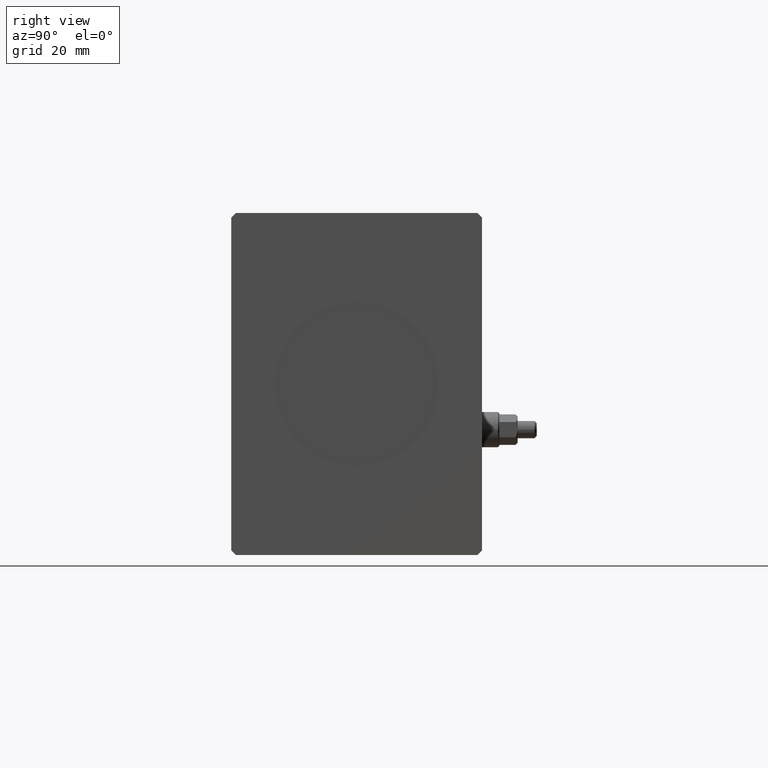
[diagram: clean part render]
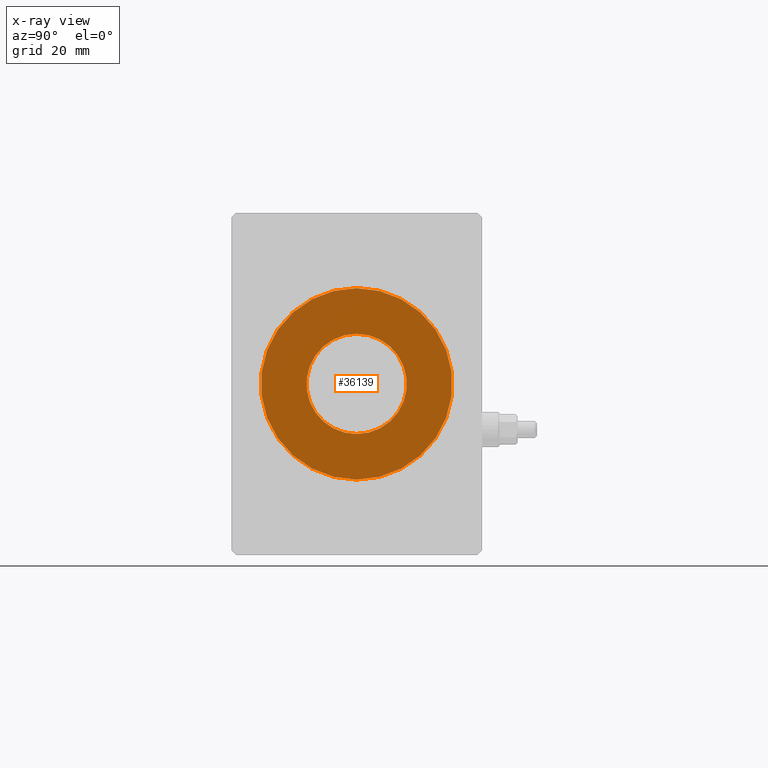
[diagram: x-ray — body ghosted, one internal face saturated and labeled with its STEP entity id]
A machine part, right view, then the same camera in x-ray: the body is ghosted and one INTERNAL B-rep face — a face not visible from any outside direction — is saturated and labeled: STEP entity #36139.
In plain terms, the highlighted planar face has unit normal (-1, 0, 0).
Its self-contained STEP definition (entity closure, byte-faithful):
#933 = FACE_OUTER_BOUND ( 'NONE', #25514, .T. ) ;
#1570 = FACE_BOUND ( 'NONE', #37253, .T. ) ;
#3155 = EDGE_CURVE ( 'NONE', #36074, #39779, #10089, .T. ) ;
#3495 = DIRECTION ( 'NONE',  ( 1.000000000000000000, 0.000000000000000000, 0.000000000000000000 ) ) ;
#3675 = ORIENTED_EDGE ( 'NONE', *, *, #29063, .T. ) ;
#5773 = EDGE_CURVE ( 'NONE', #39779, #36074, #26318, .T. ) ;
#6174 = AXIS2_PLACEMENT_3D ( 'NONE', #27103, #30035, #17598 ) ;
#6442 = CARTESIAN_POINT ( 'NONE',  ( 21.00000000000000000, 2.571758278209441661E-15, 0.000000000000000000 ) ) ;
#7293 = CARTESIAN_POINT ( 'NONE',  ( 0.000000000000000000, 0.000000000000000000, 0.000000000000000000 ) ) ;
#10089 = CIRCLE ( 'NONE', #24248, 21.00000000000000000 ) ;
#11078 = CARTESIAN_POINT ( 'NONE',  ( 0.000000000000000000, 0.000000000000000000, 0.000000000000000000 ) ) ;
#11467 = DIRECTION ( 'NONE',  ( -0.000000000000000000, 0.000000000000000000, 1.000000000000000000 ) ) ;
#13990 = CARTESIAN_POINT ( 'NONE',  ( 0.000000000000000000, 0.000000000000000000, 0.000000000000000000 ) ) ;
#14013 = PLANE ( 'NONE',  #6174 ) ;
#14241 = DIRECTION ( 'NONE',  ( 1.000000000000000000, 0.000000000000000000, 0.000000000000000000 ) ) ;
#15688 = CARTESIAN_POINT ( 'NONE',  ( 0.000000000000000000, 0.000000000000000000, 0.000000000000000000 ) ) ;
#16957 = CIRCLE ( 'NONE', #29093, 11.00000000000000000 ) ;
#17557 = AXIS2_PLACEMENT_3D ( 'NONE', #11078, #34046, #14241 ) ;
#17598 = DIRECTION ( 'NONE',  ( 1.000000000000000000, 0.000000000000000000, -0.000000000000000000 ) ) ;
#20462 = VERTEX_POINT ( 'NONE', #24507 ) ;
#20679 = ORIENTED_EDGE ( 'NONE', *, *, #5773, .F. ) ;
#24248 = AXIS2_PLACEMENT_3D ( 'NONE', #7293, #26909, #3495 ) ;
#24507 = CARTESIAN_POINT ( 'NONE',  ( -11.00000000000000000, 0.000000000000000000, 0.000000000000000000 ) ) ;
#24571 = DIRECTION ( 'NONE',  ( -0.000000000000000000, 0.000000000000000000, 1.000000000000000000 ) ) ;
#25514 = EDGE_LOOP ( 'NONE', ( #20679, #28193 ) ) ;
#26318 = CIRCLE ( 'NONE', #17557, 21.00000000000000000 ) ;
#26909 = DIRECTION ( 'NONE',  ( 0.000000000000000000, 0.000000000000000000, 1.000000000000000000 ) ) ;
#27103 = CARTESIAN_POINT ( 'NONE',  ( 0.000000000000000000, 0.000000000000000000, 0.000000000000000000 ) ) ;
#28193 = ORIENTED_EDGE ( 'NONE', *, *, #3155, .F. ) ;
#29063 = EDGE_CURVE ( 'NONE', #20462, #36801, #30905, .T. ) ;
#29093 = AXIS2_PLACEMENT_3D ( 'NONE', #15688, #24571, #34245 ) ;
#29642 = ORIENTED_EDGE ( 'NONE', *, *, #37028, .T. ) ;
#30035 = DIRECTION ( 'NONE',  ( 0.000000000000000000, 0.000000000000000000, 1.000000000000000000 ) ) ;
#30436 = DIRECTION ( 'NONE',  ( 1.000000000000000000, 0.000000000000000000, 0.000000000000000000 ) ) ;
#30905 = CIRCLE ( 'NONE', #41686, 11.00000000000000000 ) ;
#31188 = CARTESIAN_POINT ( 'NONE',  ( 11.00000000000000000, 1.347111479062088405E-15, 0.000000000000000000 ) ) ;
#31258 = CARTESIAN_POINT ( 'NONE',  ( -21.00000000000000000, 0.000000000000000000, 0.000000000000000000 ) ) ;
#34046 = DIRECTION ( 'NONE',  ( 0.000000000000000000, 0.000000000000000000, 1.000000000000000000 ) ) ;
#34245 = DIRECTION ( 'NONE',  ( 1.000000000000000000, 0.000000000000000000, 0.000000000000000000 ) ) ;
#36074 = VERTEX_POINT ( 'NONE', #6442 ) ;
#36139 = ADVANCED_FACE ( 'NONE', ( #933, #1570 ), #14013, .F. ) ;
#36801 = VERTEX_POINT ( 'NONE', #31188 ) ;
#37028 = EDGE_CURVE ( 'NONE', #36801, #20462, #16957, .T. ) ;
#37253 = EDGE_LOOP ( 'NONE', ( #3675, #29642 ) ) ;
#39779 = VERTEX_POINT ( 'NONE', #31258 ) ;
#41686 = AXIS2_PLACEMENT_3D ( 'NONE', #13990, #11467, #30436 ) ;